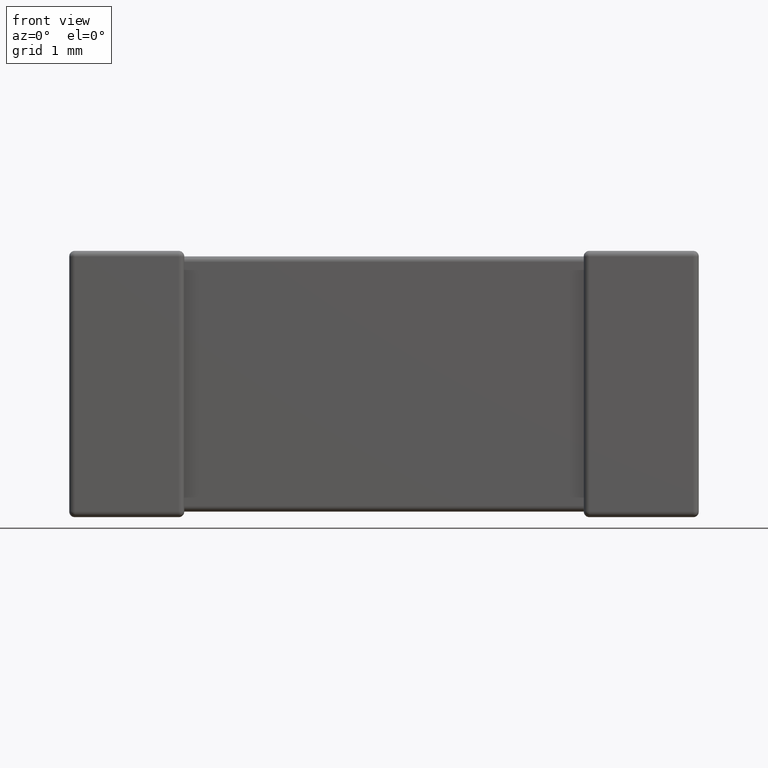
[diagram: clean part render]
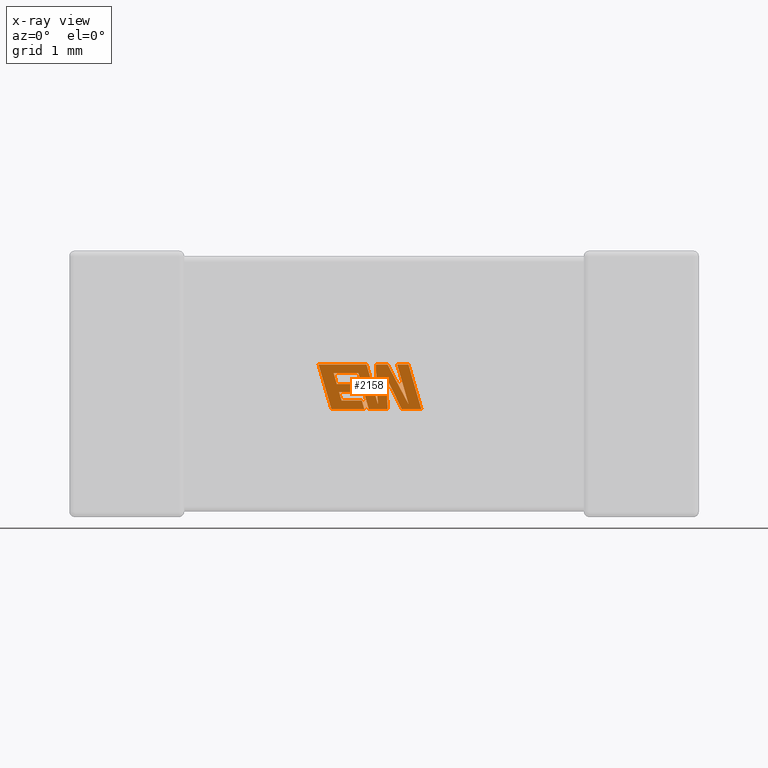
[diagram: x-ray — body ghosted, one internal face saturated and labeled with its STEP entity id]
A machine part, front view, then the same camera in x-ray: the body is ghosted and one INTERNAL B-rep face — a face not visible from any outside direction — is saturated and labeled: STEP entity #2158.
In plain terms, the highlighted planar face has unit normal (0, -1, 0).
Its self-contained STEP definition (entity closure, byte-faithful):
#43 = CARTESIAN_POINT ( 'NONE',  ( 2.629373466691290700, 2.104239999999999400, -0.9396199999999997900 ) ) ;
#50 = CARTESIAN_POINT ( 'NONE',  ( 2.549634645725568300, 2.104239999999999400, -1.267230020132175800 ) ) ;
#68 = ORIENTED_EDGE ( 'NONE', *, *, #1567, .F. ) ;
#113 = ORIENTED_EDGE ( 'NONE', *, *, #2739, .F. ) ;
#116 = VERTEX_POINT ( 'NONE', #1273 ) ;
#131 = CARTESIAN_POINT ( 'NONE',  ( 2.746534753693396200, 2.104239999999999400, -1.307607973295141300 ) ) ;
#170 = VECTOR ( 'NONE', #1831, 1000.000000000000000 ) ;
#172 = VERTEX_POINT ( 'NONE', #244 ) ;
#194 = CARTESIAN_POINT ( 'NONE',  ( 2.367925464990594500, 2.104239999999999400, -1.101089294234300200 ) ) ;
#195 = LINE ( 'NONE', #203, #321 ) ;
#200 = CARTESIAN_POINT ( 'NONE',  ( 2.229411641899189600, 2.104239999999999400, -1.169117647225116400 ) ) ;
#203 = CARTESIAN_POINT ( 'NONE',  ( 2.907931775992644000, 2.104239999999999400, -1.307607973295141300 ) ) ;
#244 = CARTESIAN_POINT ( 'NONE',  ( 2.059132083197848600, 2.104239999999999400, -0.9396199999999997900 ) ) ;
#321 = VECTOR ( 'NONE', #2711, 1000.000000000000000 ) ;
#384 = DIRECTION ( 'NONE',  ( 1.000000000000000000, 0.0000000000000000000, 0.0000000000000000000 ) ) ;
#427 = CARTESIAN_POINT ( 'NONE',  ( 2.907931775992644000, 2.104239999999999400, -1.307607973295141300 ) ) ;
#430 = CARTESIAN_POINT ( 'NONE',  ( 2.387356382901555400, 2.104239999999999400, -1.169117647225116400 ) ) ;
#445 = CARTESIAN_POINT ( 'NONE',  ( 2.436881390881004100, 2.104239999999999400, -1.307607973295141300 ) ) ;
#451 = VECTOR ( 'NONE', #4562, 1000.000000000000200 ) ;
#460 = VERTEX_POINT ( 'NONE', #2952 ) ;
#463 = ORIENTED_EDGE ( 'NONE', *, *, #4516, .F. ) ;
#531 = VERTEX_POINT ( 'NONE', #3657 ) ;
#555 = CARTESIAN_POINT ( 'NONE',  ( 2.549634645725568300, 2.104239999999999400, -1.267230020132175800 ) ) ;
#649 = ORIENTED_EDGE ( 'NONE', *, *, #2949, .F. ) ;
#693 = VERTEX_POINT ( 'NONE', #1532 ) ;
#694 = DIRECTION ( 'NONE',  ( 0.2740217765953990600, 0.0000000000000000000, -0.9617234872620618000 ) ) ;
#697 = DIRECTION ( 'NONE',  ( -0.2765379750249969400, 0.0000000000000000000, 0.9610029908221275900 ) ) ;
#703 = EDGE_CURVE ( 'NONE', #754, #4262, #3175, .T. ) ;
#743 = ORIENTED_EDGE ( 'NONE', *, *, #1056, .F. ) ;
#754 = VERTEX_POINT ( 'NONE', #4415 ) ;
#755 = VERTEX_POINT ( 'NONE', #427 ) ;
#796 = LINE ( 'NONE', #555, #903 ) ;
#835 = CARTESIAN_POINT ( 'NONE',  ( 2.803152962402230700, 2.104239999999999400, -1.268807677292195200 ) ) ;
#857 = ORIENTED_EDGE ( 'NONE', *, *, #1181, .F. ) ;
#903 = VECTOR ( 'NONE', #1550, 1000.000000000000200 ) ;
#909 = ORIENTED_EDGE ( 'NONE', *, *, #1385, .F. ) ;
#942 = DIRECTION ( 'NONE',  ( -1.000000000000000000, 0.0000000000000000000, 0.0000000000000000000 ) ) ;
#947 = ORIENTED_EDGE ( 'NONE', *, *, #2919, .F. ) ;
#952 = CARTESIAN_POINT ( 'NONE',  ( 2.630299035222518600, 2.104239999999999400, -1.307607973295141300 ) ) ;
#1004 = VECTOR ( 'NONE', #3433, 1000.000000000000100 ) ;
#1036 = VECTOR ( 'NONE', #1334, 1000.000000000000100 ) ;
#1045 = VERTEX_POINT ( 'NONE', #3934 ) ;
#1051 = LINE ( 'NONE', #1359, #3365 ) ;
#1056 = EDGE_CURVE ( 'NONE', #3227, #172, #2941, .T. ) ;
#1100 = DIRECTION ( 'NONE',  ( -0.2760118818968593800, 0.0000000000000000000, 0.9611542233438680200 ) ) ;
#1130 = DIRECTION ( 'NONE',  ( -1.000000000000000000, 0.0000000000000000000, 0.0000000000000000000 ) ) ;
#1133 = DIRECTION ( 'NONE',  ( 0.05375259206908433700, 0.0000000000000000000, -0.9985542843760946100 ) ) ;
#1145 = ORIENTED_EDGE ( 'NONE', *, *, #2955, .F. ) ;
#1160 = VERTEX_POINT ( 'NONE', #50 ) ;
#1181 = EDGE_CURVE ( 'NONE', #1441, #755, #4029, .T. ) ;
#1219 = VERTEX_POINT ( 'NONE', #1237 ) ;
#1237 = CARTESIAN_POINT ( 'NONE',  ( 2.616147270031529400, 2.104239999999999400, -1.044712637107730900 ) ) ;
#1247 = VERTEX_POINT ( 'NONE', #194 ) ;
#1273 = CARTESIAN_POINT ( 'NONE',  ( 2.630299035222518600, 2.104239999999999400, -1.307607973295141300 ) ) ;
#1322 = CARTESIAN_POINT ( 'NONE',  ( 2.387356382901555400, 2.104239999999999400, -1.169117647225116400 ) ) ;
#1324 = EDGE_CURVE ( 'NONE', #1247, #4246, #2403, .T. ) ;
#1325 = LINE ( 'NONE', #131, #1504 ) ;
#1334 = DIRECTION ( 'NONE',  ( 0.2759782365590801000, 0.0000000000000000000, -0.9611638845408936300 ) ) ;
#1359 = CARTESIAN_POINT ( 'NONE',  ( 2.390067491330817100, 2.104239999999999400, -0.9396199999999997900 ) ) ;
#1385 = EDGE_CURVE ( 'NONE', #3797, #1441, #3963, .T. ) ;
#1411 = CARTESIAN_POINT ( 'NONE',  ( 2.183943786306060900, 2.104239999999999400, -1.009629935141706200 ) ) ;
#1426 = VECTOR ( 'NONE', #3795, 1000.000000000000000 ) ;
#1428 = ORIENTED_EDGE ( 'NONE', *, *, #4111, .F. ) ;
#1441 = VERTEX_POINT ( 'NONE', #1675 ) ;
#1466 = ORIENTED_EDGE ( 'NONE', *, *, #4182, .F. ) ;
#1499 = ORIENTED_EDGE ( 'NONE', *, *, #2785, .F. ) ;
#1504 = VECTOR ( 'NONE', #2651, 999.9999999999998900 ) ;
#1507 = CARTESIAN_POINT ( 'NONE',  ( 2.249328164922039800, 2.104239999999999400, -1.237563352074695800 ) ) ;
#1532 = CARTESIAN_POINT ( 'NONE',  ( 2.455568236147196400, 2.104239999999999400, -0.9396199999999997900 ) ) ;
#1550 = DIRECTION ( 'NONE',  ( -0.05596501978068185000, 0.0000000000000000000, 0.9984327301130245800 ) ) ;
#1565 = CARTESIAN_POINT ( 'NONE',  ( -0.0003453183671814786400, 2.104239999999998600, 0.2978833907669357100 ) ) ;
#1567 = EDGE_CURVE ( 'NONE', #4262, #1683, #2282, .T. ) ;
#1636 = DIRECTION ( 'NONE',  ( -0.2762517575166415500, 0.0000000000000000000, 0.9610853065513833600 ) ) ;
#1656 = CARTESIAN_POINT ( 'NONE',  ( 2.416987245973874400, 2.104239999999999400, -1.237563352074695800 ) ) ;
#1675 = CARTESIAN_POINT ( 'NONE',  ( 2.802132520323815400, 2.104239999999999400, -0.9396199999999997900 ) ) ;
#1683 = VERTEX_POINT ( 'NONE', #835 ) ;
#1731 = AXIS2_PLACEMENT_3D ( 'NONE', #1565, #4480, #4438 ) ;
#1742 = VECTOR ( 'NONE', #3567, 1000.000000000000100 ) ;
#1754 = VECTOR ( 'NONE', #697, 1000.000000000000000 ) ;
#1763 = LINE ( 'NONE', #2545, #4372 ) ;
#1778 = EDGE_CURVE ( 'NONE', #1160, #754, #796, .T. ) ;
#1820 = VECTOR ( 'NONE', #2697, 1000.000000000000000 ) ;
#1831 = DIRECTION ( 'NONE',  ( 1.000000000000000000, 0.0000000000000000000, 0.0000000000000000000 ) ) ;
#1855 = DIRECTION ( 'NONE',  ( 0.4668459304955247000, 0.0000000000000000000, -0.8843386665637592600 ) ) ;
#1925 = LINE ( 'NONE', #2663, #4097 ) ;
#1953 = ORIENTED_EDGE ( 'NONE', *, *, #4035, .F. ) ;
#1962 = LINE ( 'NONE', #4514, #1036 ) ;
#1972 = FACE_OUTER_BOUND ( 'NONE', #2560, .T. ) ;
#2033 = DIRECTION ( 'NONE',  ( 1.000000000000000000, 0.0000000000000000000, -2.459231407381526200E-015 ) ) ;
#2053 = CARTESIAN_POINT ( 'NONE',  ( 2.229411641899189600, 2.104239999999999400, -1.169117647225116400 ) ) ;
#2062 = CARTESIAN_POINT ( 'NONE',  ( 2.802132520323815400, 2.104239999999999400, -0.9396199999999997900 ) ) ;
#2145 = VERTEX_POINT ( 'NONE', #445 ) ;
#2158 = ADVANCED_FACE ( 'NONE', ( #1972 ), #3015, .T. ) ;
#2247 = VECTOR ( 'NONE', #3807, 999.9999999999998900 ) ;
#2282 = LINE ( 'NONE', #43, #3211 ) ;
#2373 = CARTESIAN_POINT ( 'NONE',  ( 2.436881390881004100, 2.104239999999999400, -1.307607973295141300 ) ) ;
#2376 = ORIENTED_EDGE ( 'NONE', *, *, #1778, .F. ) ;
#2403 = LINE ( 'NONE', #3938, #1742 ) ;
#2470 = EDGE_CURVE ( 'NONE', #4246, #4636, #2906, .T. ) ;
#2545 = CARTESIAN_POINT ( 'NONE',  ( 2.616147270031529400, 2.104239999999999400, -1.044712637107730900 ) ) ;
#2560 = EDGE_LOOP ( 'NONE', ( #3853, #857, #909, #1953, #68, #3037, #2376, #463, #4145, #743, #3057, #1499, #1466, #2585, #3811, #3394, #3454, #113, #649, #2603, #1145, #1428, #947 ) ) ;
#2573 = CARTESIAN_POINT ( 'NONE',  ( 2.629373466691290700, 2.104239999999999400, -0.9396199999999997900 ) ) ;
#2585 = ORIENTED_EDGE ( 'NONE', *, *, #3510, .F. ) ;
#2603 = ORIENTED_EDGE ( 'NONE', *, *, #3777, .F. ) ;
#2613 = EDGE_CURVE ( 'NONE', #755, #3466, #195, .T. ) ;
#2648 = LINE ( 'NONE', #1507, #170 ) ;
#2651 = DIRECTION ( 'NONE',  ( -0.4443210308329503800, 0.0000000000000000000, 0.8958676361826809500 ) ) ;
#2663 = CARTESIAN_POINT ( 'NONE',  ( 2.473585976343189300, 2.104239999999999400, -1.307607973295141300 ) ) ;
#2678 = CARTESIAN_POINT ( 'NONE',  ( 2.473585976343189300, 2.104239999999999400, -1.307607973295141300 ) ) ;
#2680 = VERTEX_POINT ( 'NONE', #3476 ) ;
#2697 = DIRECTION ( 'NONE',  ( 1.000000000000000000, 0.0000000000000000000, 0.0000000000000000000 ) ) ;
#2711 = DIRECTION ( 'NONE',  ( -1.000000000000000000, 0.0000000000000000000, 0.0000000000000000000 ) ) ;
#2716 = LINE ( 'NONE', #1411, #4436 ) ;
#2721 = DIRECTION ( 'NONE',  ( 1.000000000000000000, 0.0000000000000000000, 0.0000000000000000000 ) ) ;
#2739 = EDGE_CURVE ( 'NONE', #460, #2680, #2716, .T. ) ;
#2784 = LINE ( 'NONE', #1656, #1004 ) ;
#2785 = EDGE_CURVE ( 'NONE', #531, #2145, #2784, .T. ) ;
#2792 = EDGE_CURVE ( 'NONE', #2680, #1247, #3767, .T. ) ;
#2804 = CARTESIAN_POINT ( 'NONE',  ( 2.165024208342573300, 2.104239999999999400, -1.307607973295141300 ) ) ;
#2820 = LINE ( 'NONE', #2373, #1426 ) ;
#2834 = LINE ( 'NONE', #4646, #3982 ) ;
#2860 = CARTESIAN_POINT ( 'NONE',  ( 2.249328164922039800, 2.104239999999999400, -1.237563352074695800 ) ) ;
#2905 = CARTESIAN_POINT ( 'NONE',  ( 2.165024208342573300, 2.104239999999999400, -1.307607973295141300 ) ) ;
#2906 = LINE ( 'NONE', #1322, #4491 ) ;
#2919 = EDGE_CURVE ( 'NONE', #3466, #1219, #1325, .T. ) ;
#2941 = LINE ( 'NONE', #2804, #1754 ) ;
#2949 = EDGE_CURVE ( 'NONE', #1045, #460, #4260, .T. ) ;
#2952 = CARTESIAN_POINT ( 'NONE',  ( 2.183943786306060900, 2.104239999999999400, -1.009629935141706200 ) ) ;
#2955 = EDGE_CURVE ( 'NONE', #116, #4515, #4102, .T. ) ;
#2986 = VECTOR ( 'NONE', #384, 1000.000000000000000 ) ;
#3008 = CARTESIAN_POINT ( 'NONE',  ( 2.531271163936493100, 2.104239999999999400, -0.9396199999999997900 ) ) ;
#3015 = PLANE ( 'NONE',  #1731 ) ;
#3037 = ORIENTED_EDGE ( 'NONE', *, *, #703, .F. ) ;
#3044 = VERTEX_POINT ( 'NONE', #2860 ) ;
#3057 = ORIENTED_EDGE ( 'NONE', *, *, #4430, .F. ) ;
#3064 = CARTESIAN_POINT ( 'NONE',  ( 2.708621088016273300, 2.104239999999999400, -0.9396199999999997900 ) ) ;
#3175 = LINE ( 'NONE', #3008, #1820 ) ;
#3211 = VECTOR ( 'NONE', #1855, 1000.000000000000000 ) ;
#3227 = VERTEX_POINT ( 'NONE', #2905 ) ;
#3240 = LINE ( 'NONE', #200, #2247 ) ;
#3365 = VECTOR ( 'NONE', #2033, 1000.000000000000000 ) ;
#3394 = ORIENTED_EDGE ( 'NONE', *, *, #1324, .F. ) ;
#3433 = DIRECTION ( 'NONE',  ( 0.2732148821746425100, 0.0000000000000000000, -0.9619530280415443700 ) ) ;
#3454 = ORIENTED_EDGE ( 'NONE', *, *, #2792, .F. ) ;
#3466 = VERTEX_POINT ( 'NONE', #3845 ) ;
#3476 = CARTESIAN_POINT ( 'NONE',  ( 2.210003102103970600, 2.104239999999999400, -1.101089294234300200 ) ) ;
#3510 = EDGE_CURVE ( 'NONE', #4636, #3044, #3240, .T. ) ;
#3527 = DIRECTION ( 'NONE',  ( -1.000000000000000000, 0.0000000000000000000, 0.0000000000000000000 ) ) ;
#3541 = VECTOR ( 'NONE', #2721, 1000.000000000000000 ) ;
#3567 = DIRECTION ( 'NONE',  ( 0.2746459304917039400, 0.0000000000000000000, -0.9615454294334439000 ) ) ;
#3657 = CARTESIAN_POINT ( 'NONE',  ( 2.416987245973874400, 2.104239999999999400, -1.237563352074695800 ) ) ;
#3767 = LINE ( 'NONE', #3933, #3541 ) ;
#3777 = EDGE_CURVE ( 'NONE', #4515, #1045, #1925, .T. ) ;
#3795 = DIRECTION ( 'NONE',  ( -1.000000000000000000, 0.0000000000000000000, 0.0000000000000000000 ) ) ;
#3797 = VERTEX_POINT ( 'NONE', #3064 ) ;
#3807 = DIRECTION ( 'NONE',  ( 0.2793947940878429000, 0.0000000000000000000, -0.9601763114327556100 ) ) ;
#3811 = ORIENTED_EDGE ( 'NONE', *, *, #2470, .F. ) ;
#3845 = CARTESIAN_POINT ( 'NONE',  ( 2.746534753693396200, 2.104239999999999400, -1.307607973295141300 ) ) ;
#3853 = ORIENTED_EDGE ( 'NONE', *, *, #2613, .F. ) ;
#3900 = EDGE_CURVE ( 'NONE', #172, #693, #1051, .T. ) ;
#3933 = CARTESIAN_POINT ( 'NONE',  ( 2.210003102103970600, 2.104239999999999400, -1.101089294234300200 ) ) ;
#3934 = CARTESIAN_POINT ( 'NONE',  ( 2.387935976098548400, 2.104239999999999400, -1.009629935141706200 ) ) ;
#3938 = CARTESIAN_POINT ( 'NONE',  ( 2.367925464990594500, 2.104239999999999400, -1.101089294234300200 ) ) ;
#3963 = LINE ( 'NONE', #4327, #2986 ) ;
#3982 = VECTOR ( 'NONE', #1100, 1000.000000000000100 ) ;
#4029 = LINE ( 'NONE', #2062, #451 ) ;
#4035 = EDGE_CURVE ( 'NONE', #1683, #3797, #2834, .T. ) ;
#4052 = VECTOR ( 'NONE', #3527, 1000.000000000000000 ) ;
#4097 = VECTOR ( 'NONE', #1636, 1000.000000000000100 ) ;
#4102 = LINE ( 'NONE', #952, #4385 ) ;
#4111 = EDGE_CURVE ( 'NONE', #1219, #116, #1763, .T. ) ;
#4145 = ORIENTED_EDGE ( 'NONE', *, *, #3900, .F. ) ;
#4182 = EDGE_CURVE ( 'NONE', #3044, #531, #2648, .T. ) ;
#4224 = CARTESIAN_POINT ( 'NONE',  ( 2.387935976098548400, 2.104239999999999400, -1.009629935141706200 ) ) ;
#4246 = VERTEX_POINT ( 'NONE', #430 ) ;
#4260 = LINE ( 'NONE', #4224, #4052 ) ;
#4262 = VERTEX_POINT ( 'NONE', #2573 ) ;
#4327 = CARTESIAN_POINT ( 'NONE',  ( 2.708621088016273300, 2.104239999999999400, -0.9396199999999997900 ) ) ;
#4372 = VECTOR ( 'NONE', #1133, 1000.000000000000200 ) ;
#4385 = VECTOR ( 'NONE', #942, 1000.000000000000000 ) ;
#4415 = CARTESIAN_POINT ( 'NONE',  ( 2.531271163936493100, 2.104239999999999400, -0.9396199999999997900 ) ) ;
#4430 = EDGE_CURVE ( 'NONE', #2145, #3227, #2820, .T. ) ;
#4436 = VECTOR ( 'NONE', #694, 1000.000000000000200 ) ;
#4438 = DIRECTION ( 'NONE',  ( 0.0000000000000000000, 0.0000000000000000000, -1.000000000000000000 ) ) ;
#4480 = DIRECTION ( 'NONE',  ( 0.0000000000000000000, -1.000000000000000000, 0.0000000000000000000 ) ) ;
#4491 = VECTOR ( 'NONE', #1130, 1000.000000000000000 ) ;
#4514 = CARTESIAN_POINT ( 'NONE',  ( 2.455568236147196400, 2.104239999999999400, -0.9396199999999997900 ) ) ;
#4515 = VERTEX_POINT ( 'NONE', #2678 ) ;
#4516 = EDGE_CURVE ( 'NONE', #693, #1160, #1962, .T. ) ;
#4562 = DIRECTION ( 'NONE',  ( 0.2763139702539146300, 0.0000000000000000000, -0.9610674221107063900 ) ) ;
#4636 = VERTEX_POINT ( 'NONE', #2053 ) ;
#4646 = CARTESIAN_POINT ( 'NONE',  ( 2.803152962402230700, 2.104239999999999400, -1.268807677292195200 ) ) ;